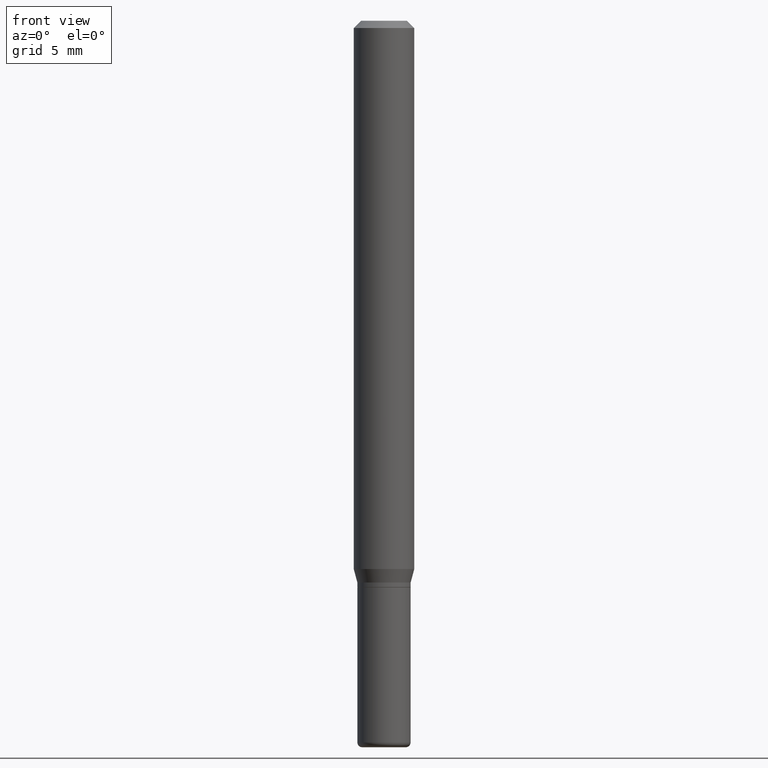
[diagram: clean part render]
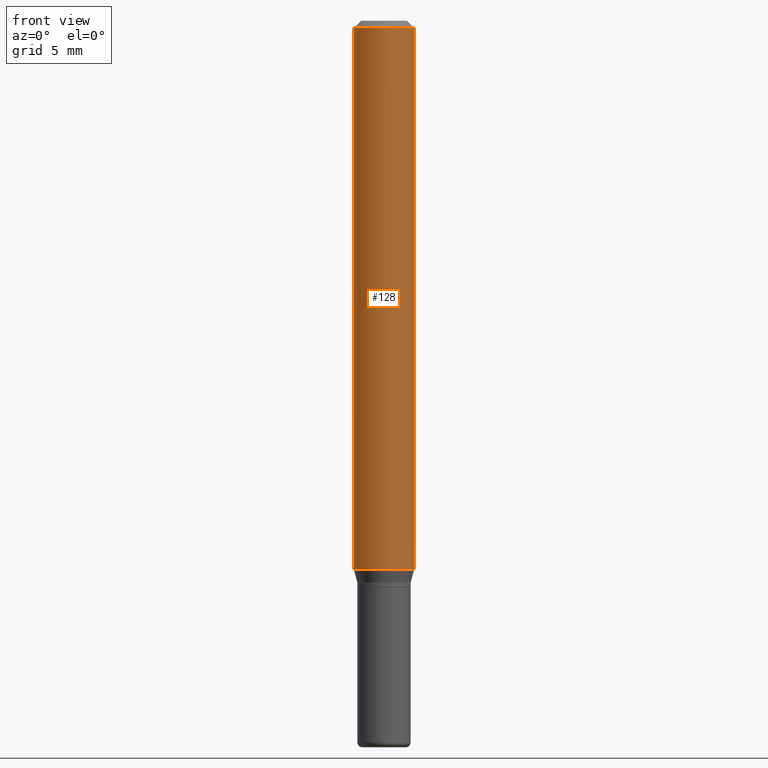
[diagram: same view with one face highlighted and labeled with its STEP entity id]
A machine part, front view. The second image highlights one B-rep face of the part: STEP entity #128.
In plain terms, the highlighted cylindrical surface (edge-blend (fillet) strip) has radius 1.5875 mm, axis along (-0, 0, 1).
Its self-contained STEP definition (entity closure, byte-faithful):
#9 = CARTESIAN_POINT ( 'NONE',  ( -0.06250000000000000000, 4.440892098500626162E-16, -3.074334431409316114E-30 ) ) ;
#13 = VECTOR ( 'NONE', #367, 39.37007874015748143 ) ;
#47 = CIRCLE ( 'NONE', #95, 0.06250000000000000000 ) ;
#56 = ORIENTED_EDGE ( 'NONE', *, *, #88, .T. ) ;
#57 = AXIS2_PLACEMENT_3D ( 'NONE', #424, #150, #69 ) ;
#69 = DIRECTION ( 'NONE',  ( 1.000000000000000000, -6.982962677686266711E-15, 4.876176775795935793E-29 ) ) ;
#80 = LINE ( 'NONE', #517, #329 ) ;
#86 = AXIS2_PLACEMENT_3D ( 'NONE', #346, #299, #304 ) ;
#88 = EDGE_CURVE ( 'NONE', #275, #383, #453, .T. ) ;
#95 = AXIS2_PLACEMENT_3D ( 'NONE', #118, #274, #441 ) ;
#97 = ORIENTED_EDGE ( 'NONE', *, *, #459, .T. ) ;
#118 = CARTESIAN_POINT ( 'NONE',  ( 3.668203209277632395E-31, -5.237222008264614861E-17, -0.01499999999999970281 ) ) ;
#128 = ADVANCED_FACE ( 'NONE', ( #156 ), #265, .T. ) ;
#150 = DIRECTION ( 'NONE',  ( -2.445468806185136597E-29, 3.491481338843145583E-15, 1.000000000000000000 ) ) ;
#156 = FACE_OUTER_BOUND ( 'NONE', #414, .T. ) ;
#259 = CARTESIAN_POINT ( 'NONE',  ( -0.06250000000000000000, -1.558292130156879916E-15, -0.01499999999999970281 ) ) ;
#265 = CYLINDRICAL_SURFACE ( 'NONE', #57, 0.06250000000000000000 ) ;
#274 = DIRECTION ( 'NONE',  ( -2.445468806185136597E-29, 3.491481338843145583E-15, 1.000000000000000000 ) ) ;
#275 = VERTEX_POINT ( 'NONE', #297 ) ;
#286 = VERTEX_POINT ( 'NONE', #340 ) ;
#289 = ORIENTED_EDGE ( 'NONE', *, *, #428, .F. ) ;
#297 = CARTESIAN_POINT ( 'NONE',  ( -0.06250000000000000000, -3.508301250081177341E-15, -1.132009618943233376 ) ) ;
#299 = DIRECTION ( 'NONE',  ( -2.445468806185136597E-29, 3.491481338843145583E-15, 1.000000000000000000 ) ) ;
#304 = DIRECTION ( 'NONE',  ( 1.000000000000000000, -6.982962677686262766E-15, 0.000000000000000000 ) ) ;
#321 = LINE ( 'NONE', #9, #13 ) ;
#329 = VECTOR ( 'NONE', #363, 39.37007874015748143 ) ;
#334 = VERTEX_POINT ( 'NONE', #259 ) ;
#340 = CARTESIAN_POINT ( 'NONE',  ( 0.06250000000000000000, -4.888073874380378612E-16, -0.01499999999999970281 ) ) ;
#346 = CARTESIAN_POINT ( 'NONE',  ( 2.768294211427200085E-29, -3.952390459931239169E-15, -1.132009618943233376 ) ) ;
#363 = DIRECTION ( 'NONE',  ( -2.445468806185136877E-29, 3.491481338843145188E-15, 1.000000000000000000 ) ) ;
#366 = ORIENTED_EDGE ( 'NONE', *, *, #485, .F. ) ;
#367 = DIRECTION ( 'NONE',  ( -2.445468806185136877E-29, 3.491481338843145188E-15, 1.000000000000000000 ) ) ;
#383 = VERTEX_POINT ( 'NONE', #430 ) ;
#414 = EDGE_LOOP ( 'NONE', ( #289, #56, #97, #366 ) ) ;
#424 = CARTESIAN_POINT ( 'NONE',  ( 0.000000000000000000, 0.000000000000000000, 0.000000000000000000 ) ) ;
#428 = EDGE_CURVE ( 'NONE', #275, #334, #321, .T. ) ;
#430 = CARTESIAN_POINT ( 'NONE',  ( 0.06250000000000000000, -4.388825627286631627E-15, -1.132009618943233376 ) ) ;
#441 = DIRECTION ( 'NONE',  ( 1.000000000000000000, -6.982962677686266711E-15, 0.000000000000000000 ) ) ;
#453 = CIRCLE ( 'NONE', #86, 0.06250000000000000000 ) ;
#459 = EDGE_CURVE ( 'NONE', #383, #286, #80, .T. ) ;
#485 = EDGE_CURVE ( 'NONE', #334, #286, #47, .T. ) ;
#517 = CARTESIAN_POINT ( 'NONE',  ( 0.06250000000000000000, -4.364351673553916694E-16, 3.047610484872459871E-30 ) ) ;